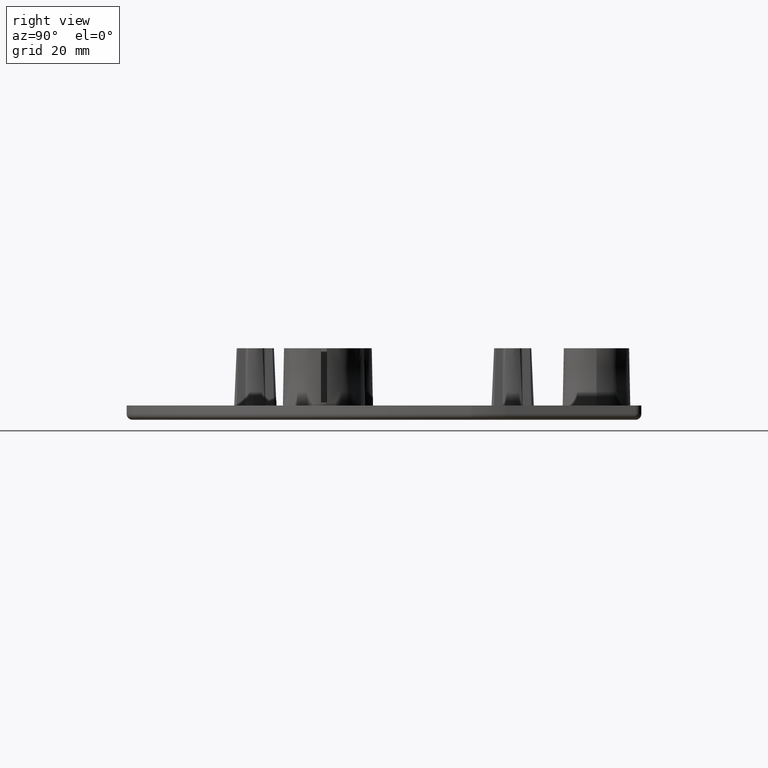
[diagram: clean part render]
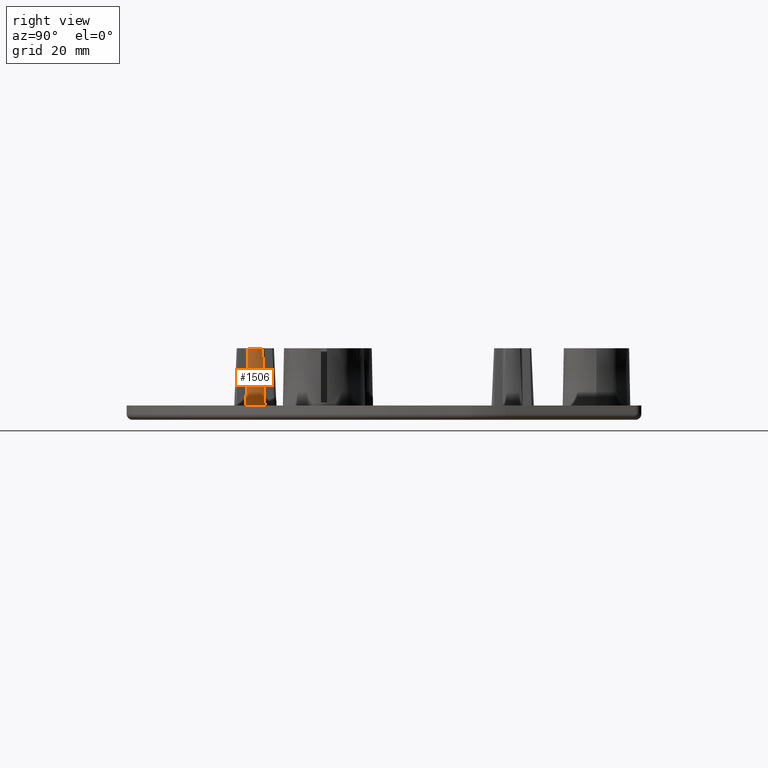
[diagram: same view with one face highlighted and labeled with its STEP entity id]
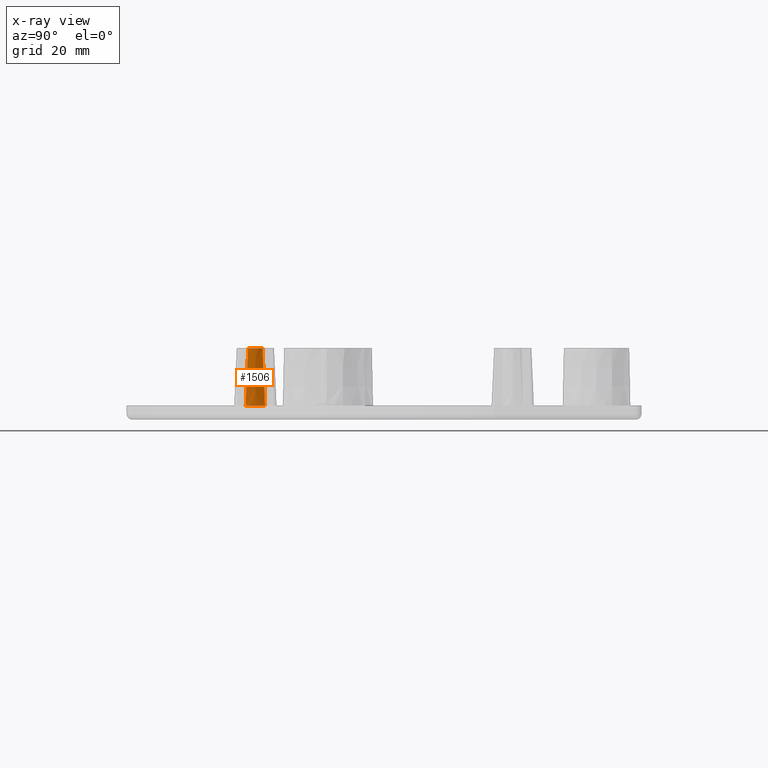
[diagram: x-ray of the same camera — body ghosted, the highlighted face saturated]
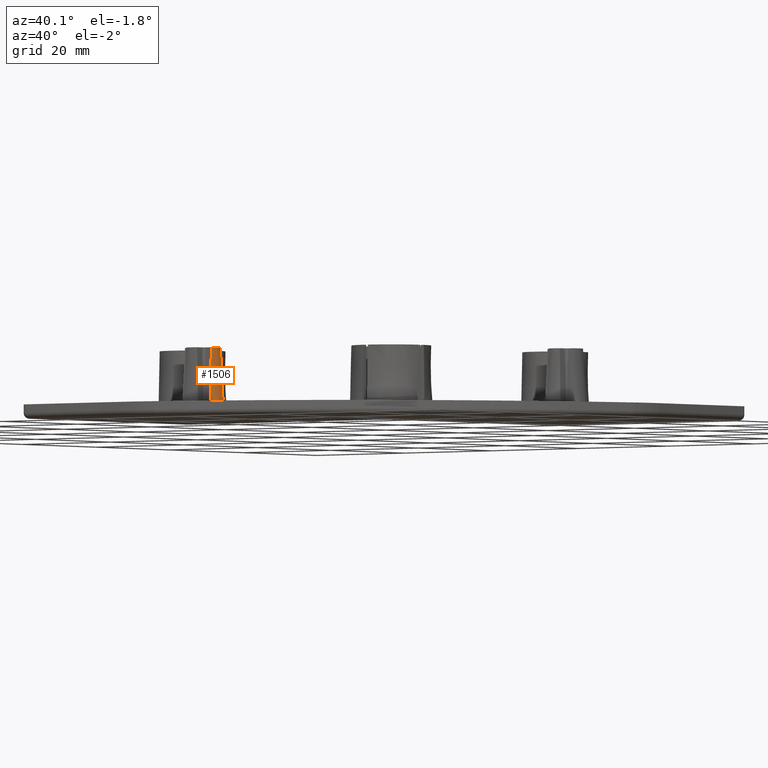
[diagram: same view with one face highlighted and labeled with its STEP entity id]
A machine part, right view. The second image highlights one B-rep face of the part: STEP entity #1506.
The next image is the same camera in x-ray: the body ghosted, the highlighted face saturated — about 0% of this face is hidden behind the body in this view.
A second angle (auxiliary view) of the same face is appended — the face is thin or edge-on in the first view.
In plain terms, the highlighted conical surface has half-angle 2.5 deg.
Its self-contained STEP definition (entity closure, byte-faithful):
#36=(
BOUNDED_CURVE()
B_SPLINE_CURVE(2,(#2455,#2456,#2457),.UNSPECIFIED.,.F.,.F.)
B_SPLINE_CURVE_WITH_KNOTS((3,3),(106.773377950969,109.226539415431),
 .UNSPECIFIED.)
CURVE()
GEOMETRIC_REPRESENTATION_ITEM()
RATIONAL_B_SPLINE_CURVE((1.,1.,1.))
REPRESENTATION_ITEM('')
);
#37=(
BOUNDED_CURVE()
B_SPLINE_CURVE(2,(#2463,#2464,#2465),.UNSPECIFIED.,.F.,.F.)
B_SPLINE_CURVE_WITH_KNOTS((3,3),(106.773377950969,109.226539415431),
 .UNSPECIFIED.)
CURVE()
GEOMETRIC_REPRESENTATION_ITEM()
RATIONAL_B_SPLINE_CURVE((1.,1.,1.))
REPRESENTATION_ITEM('')
);
#52=CONICAL_SURFACE('',#1650,3.25,0.0436332312998582);
#112=CIRCLE('',#1651,3.25);
#113=CIRCLE('',#1652,3.68660942908512);
#204=FACE_OUTER_BOUND('',#295,.T.);
#295=EDGE_LOOP('',(#1105,#1106,#1107,#1108));
#660=VERTEX_POINT('',#2452);
#661=VERTEX_POINT('',#2454);
#662=VERTEX_POINT('',#2460);
#663=VERTEX_POINT('',#2462);
#833=EDGE_CURVE('',#661,#660,#36,.T.);
#835=EDGE_CURVE('',#660,#662,#112,.T.);
#836=EDGE_CURVE('',#663,#662,#37,.T.);
#837=EDGE_CURVE('',#661,#663,#113,.T.);
#1105=ORIENTED_EDGE('',*,*,#835,.T.);
#1106=ORIENTED_EDGE('',*,*,#836,.F.);
#1107=ORIENTED_EDGE('',*,*,#837,.F.);
#1108=ORIENTED_EDGE('',*,*,#833,.T.);
#1506=ADVANCED_FACE('',(#204),#52,.T.);
#1650=AXIS2_PLACEMENT_3D('',#2459,#1946,#1947);
#1651=AXIS2_PLACEMENT_3D('',#2461,#1948,#1949);
#1652=AXIS2_PLACEMENT_3D('',#2466,#1950,#1951);
#1946=DIRECTION('center_axis',(0.,0.,-1.));
#1947=DIRECTION('ref_axis',(1.,0.,0.));
#1948=DIRECTION('center_axis',(0.,0.,-1.));
#1949=DIRECTION('ref_axis',(1.,0.,0.));
#1950=DIRECTION('center_axis',(0.,0.,-1.));
#1951=DIRECTION('ref_axis',(1.,0.,0.));
#2452=CARTESIAN_POINT('',(-42.,1.25,10.));
#2454=CARTESIAN_POINT('',(-41.7218240259789,1.68660942908521,-6.21724893790088E-14));
#2455=CARTESIAN_POINT('Ctrl Pts',(-41.7218240259789,1.68660942908521,-1.24344978758018E-13));
#2456=CARTESIAN_POINT('Ctrl Pts',(-41.8609120129079,1.45863198057221,5.22154203107143));
#2457=CARTESIAN_POINT('Ctrl Pts',(-41.9999999998368,1.25000000016717,9.99999999617334));
#2459=CARTESIAN_POINT('Origin',(-45.,0.,10.));
#2460=CARTESIAN_POINT('',(-42.,-1.25,10.));
#2461=CARTESIAN_POINT('Origin',(-45.,0.,10.));
#2462=CARTESIAN_POINT('',(-41.7218240259789,-1.68660942908521,-6.21724893790088E-14));
#2463=CARTESIAN_POINT('Ctrl Pts',(-41.7218240259789,-1.68660942908521,-1.24344978758018E-13));
#2464=CARTESIAN_POINT('Ctrl Pts',(-41.8609120129079,-1.45863198057221,5.22154203107143));
#2465=CARTESIAN_POINT('Ctrl Pts',(-41.9999999998368,-1.25000000016717,9.99999999617334));
#2466=CARTESIAN_POINT('Origin',(-45.,0.,0.));